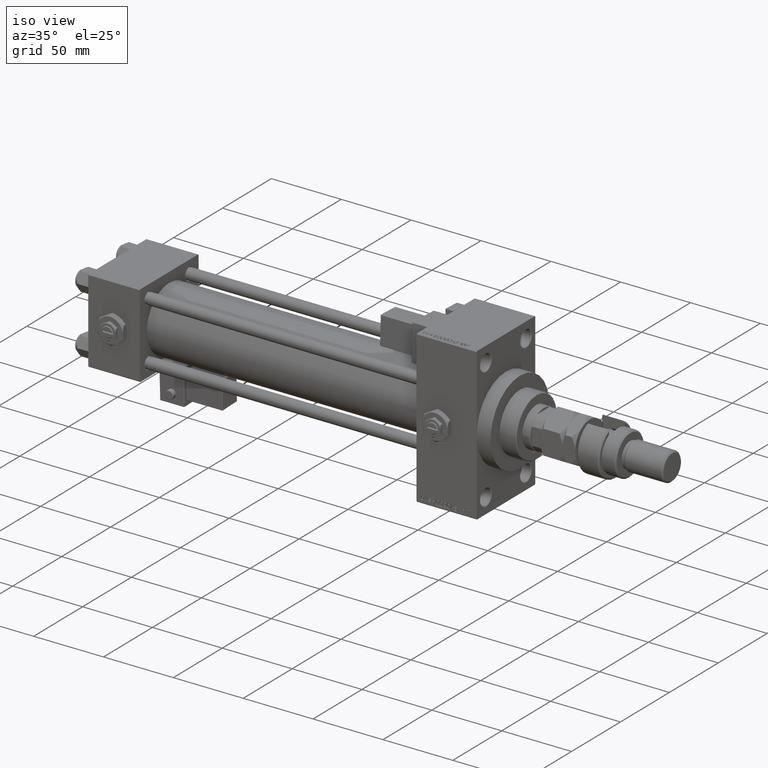
[diagram: clean part render]
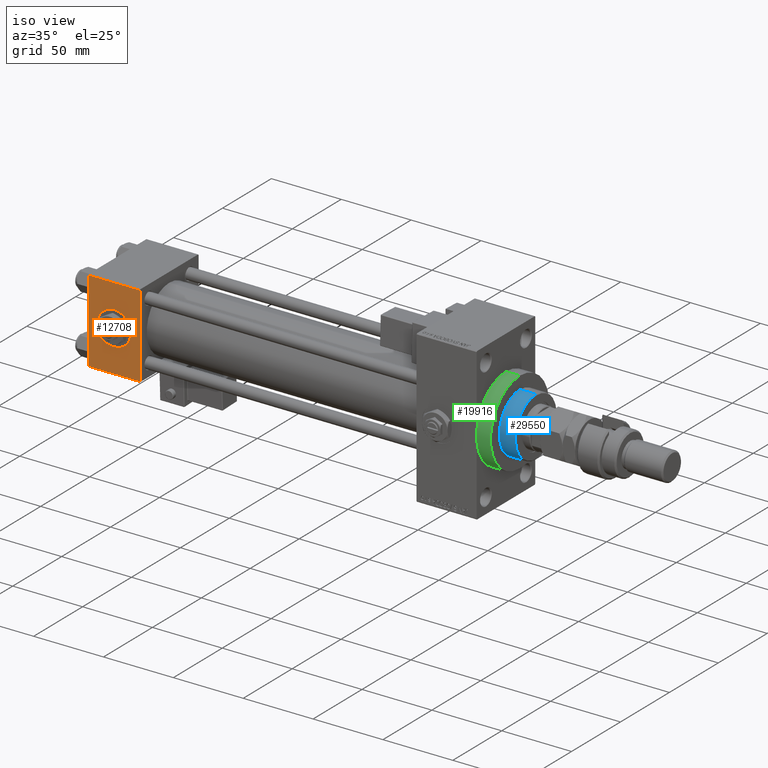
[diagram: same view with three faces highlighted in distinct colors, each labeled with its STEP entity id]
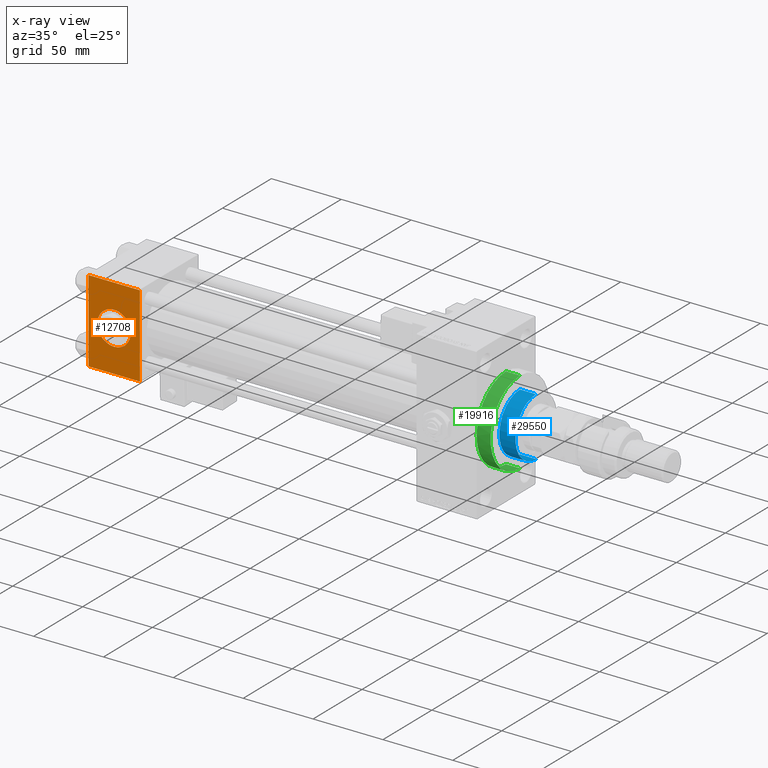
[diagram: x-ray of the same camera — body ghosted, the three highlighted faces saturated]
A machine part, iso view with three faces highlighted in distinct colors.
The next image is the same camera in x-ray (body ghosted, the three faces saturated) — at least one of them is partly hidden behind the body in this view.
Their STEP definitions:

[orange] entity #12708 — the highlighted planar face has unit normal (0, 1, 0).
#1102 = DIRECTION ( 'NONE',  ( 0.000000000000000000, 0.000000000000000000, -1.000000000000000000 ) ) ;
#1226 = DIRECTION ( 'NONE',  ( -1.000000000000000000, 0.000000000000000000, 0.000000000000000000 ) ) ;
#1351 = VERTEX_POINT ( 'NONE', #6314 ) ;
#1535 = EDGE_LOOP ( 'NONE', ( #40857, #37587, #42648, #30805 ) ) ;
#2177 = CIRCLE ( 'NONE', #5689, 12.00000000000000178 ) ;
#3256 = DIRECTION ( 'NONE',  ( 0.000000000000000000, -1.000000000000000000, -8.673617379884036705E-17 ) ) ;
#4600 = CARTESIAN_POINT ( 'NONE',  ( 37.00000000000000000, -30.00000000000000000, -29.50000000000001776 ) ) ;
#5229 = LINE ( 'NONE', #38730, #52235 ) ;
#5255 = CARTESIAN_POINT ( 'NONE',  ( 18.50000000000000000, -30.00000000000000000, 12.00000000000000178 ) ) ;
#5689 = AXIS2_PLACEMENT_3D ( 'NONE', #29051, #3256, #33179 ) ;
#6314 = CARTESIAN_POINT ( 'NONE',  ( 0.000000000000000000, -30.00000000000000000, -29.50000000000001776 ) ) ;
#7433 = FACE_BOUND ( 'NONE', #49913, .T. ) ;
#8308 = EDGE_CURVE ( 'NONE', #43520, #1351, #5229, .T. ) ;
#9732 = LINE ( 'NONE', #4600, #27072 ) ;
#10534 = CARTESIAN_POINT ( 'NONE',  ( 37.00000000000000000, -30.00000000000000000, 29.99999999999999289 ) ) ;
#10738 = DIRECTION ( 'NONE',  ( 0.000000000000000000, -0.000000000000000000, 1.000000000000000000 ) ) ;
#12028 = AXIS2_PLACEMENT_3D ( 'NONE', #24179, #35746, #10738 ) ;
#12708 = ADVANCED_FACE ( 'NONE', ( #7433, #40149 ), #44813, .F. ) ;
#16309 = ORIENTED_EDGE ( 'NONE', *, *, #53830, .F. ) ;
#21264 = CARTESIAN_POINT ( 'NONE',  ( 37.00000000000000000, -30.00000000000000000, 29.49999999999999289 ) ) ;
#21316 = CARTESIAN_POINT ( 'NONE',  ( 18.50000000000000000, -30.00000000000000000, 0.000000000000000000 ) ) ;
#21810 = LINE ( 'NONE', #21264, #37374 ) ;
#21866 = DIRECTION ( 'NONE',  ( 0.000000000000000000, -1.000000000000000000, -8.673617379884036705E-17 ) ) ;
#22291 = VERTEX_POINT ( 'NONE', #5255 ) ;
#23903 = EDGE_CURVE ( 'NONE', #47946, #43520, #21810, .T. ) ;
#24179 = CARTESIAN_POINT ( 'NONE',  ( 37.00000000000000000, -30.00000000000000000, 29.99999999999999289 ) ) ;
#24505 = ORIENTED_EDGE ( 'NONE', *, *, #41927, .F. ) ;
#27072 = VECTOR ( 'NONE', #45819, 1000.000000000000000 ) ;
#27283 = DIRECTION ( 'NONE',  ( 0.000000000000000000, 0.000000000000000000, -1.000000000000000000 ) ) ;
#28243 = VECTOR ( 'NONE', #27283, 1000.000000000000000 ) ;
#28356 = EDGE_CURVE ( 'NONE', #1351, #36880, #9732, .T. ) ;
#29051 = CARTESIAN_POINT ( 'NONE',  ( 18.50000000000000000, -30.00000000000000000, 0.000000000000000000 ) ) ;
#30805 = ORIENTED_EDGE ( 'NONE', *, *, #23903, .T. ) ;
#31910 = AXIS2_PLACEMENT_3D ( 'NONE', #21316, #21866, #38094 ) ;
#33179 = DIRECTION ( 'NONE',  ( 0.000000000000000000, 0.000000000000000000, -1.000000000000000000 ) ) ;
#35746 = DIRECTION ( 'NONE',  ( -0.000000000000000000, 1.000000000000000000, 0.000000000000000000 ) ) ;
#36880 = VERTEX_POINT ( 'NONE', #49303 ) ;
#37374 = VECTOR ( 'NONE', #1226, 1000.000000000000000 ) ;
#37587 = ORIENTED_EDGE ( 'NONE', *, *, #28356, .T. ) ;
#38094 = DIRECTION ( 'NONE',  ( 0.000000000000000000, 0.000000000000000000, -1.000000000000000000 ) ) ;
#38199 = EDGE_CURVE ( 'NONE', #47946, #36880, #43784, .T. ) ;
#38730 = CARTESIAN_POINT ( 'NONE',  ( 0.000000000000000000, -30.00000000000000000, 29.99999999999999289 ) ) ;
#40149 = FACE_OUTER_BOUND ( 'NONE', #1535, .T. ) ;
#40707 = CARTESIAN_POINT ( 'NONE',  ( 18.50000000000000000, -30.00000000000000000, -12.00000000000000178 ) ) ;
#40857 = ORIENTED_EDGE ( 'NONE', *, *, #8308, .T. ) ;
#41927 = EDGE_CURVE ( 'NONE', #48871, #22291, #53000, .T. ) ;
#42104 = CARTESIAN_POINT ( 'NONE',  ( 0.000000000000000000, -30.00000000000000000, 29.49999999999999289 ) ) ;
#42648 = ORIENTED_EDGE ( 'NONE', *, *, #38199, .F. ) ;
#42804 = CARTESIAN_POINT ( 'NONE',  ( 37.00000000000000000, -30.00000000000000000, 29.49999999999999289 ) ) ;
#43520 = VERTEX_POINT ( 'NONE', #42104 ) ;
#43784 = LINE ( 'NONE', #10534, #28243 ) ;
#44813 = PLANE ( 'NONE',  #12028 ) ;
#45819 = DIRECTION ( 'NONE',  ( 1.000000000000000000, 0.000000000000000000, 0.000000000000000000 ) ) ;
#47946 = VERTEX_POINT ( 'NONE', #42804 ) ;
#48871 = VERTEX_POINT ( 'NONE', #40707 ) ;
#49303 = CARTESIAN_POINT ( 'NONE',  ( 37.00000000000000000, -30.00000000000000000, -29.50000000000001776 ) ) ;
#49913 = EDGE_LOOP ( 'NONE', ( #24505, #16309 ) ) ;
#52235 = VECTOR ( 'NONE', #1102, 1000.000000000000000 ) ;
#53000 = CIRCLE ( 'NONE', #31910, 12.00000000000000178 ) ;
#53830 = EDGE_CURVE ( 'NONE', #22291, #48871, #2177, .T. ) ;

[blue] entity #29550 — the highlighted cylindrical surface (edge-blend (fillet) strip) has radius 21 mm, axis along (-1, 0, 0).
#1521 = CARTESIAN_POINT ( 'NONE',  ( -21.00000000000000000, 0.000000000000000000, 55.26000000000000512 ) ) ;
#4468 = CARTESIAN_POINT ( 'NONE',  ( 0.000000000000000000, 0.000000000000000000, 54.75999999999999091 ) ) ;
#5285 = EDGE_CURVE ( 'NONE', #49622, #22089, #47131, .T. ) ;
#5709 = LINE ( 'NONE', #14205, #39839 ) ;
#5962 = EDGE_CURVE ( 'NONE', #24450, #20749, #5709, .T. ) ;
#6450 = CARTESIAN_POINT ( 'NONE',  ( 21.00000000000000000, 2.571758278209441661E-15, 43.25999999999999801 ) ) ;
#7768 = DIRECTION ( 'NONE',  ( 1.000000000000000000, 0.000000000000000000, 0.000000000000000000 ) ) ;
#9355 = AXIS2_PLACEMENT_3D ( 'NONE', #39690, #31452, #36378 ) ;
#9955 = VECTOR ( 'NONE', #47945, 1000.000000000000000 ) ;
#10071 = ORIENTED_EDGE ( 'NONE', *, *, #28584, .T. ) ;
#11150 = CARTESIAN_POINT ( 'NONE',  ( 0.000000000000000000, 0.000000000000000000, 55.26000000000000512 ) ) ;
#12227 = CYLINDRICAL_SURFACE ( 'NONE', #51666, 21.00000000000000000 ) ;
#14205 = CARTESIAN_POINT ( 'NONE',  ( 21.00000000000000000, 2.571758278209441661E-15, 55.26000000000000512 ) ) ;
#14483 = DIRECTION ( 'NONE',  ( -0.000000000000000000, -0.000000000000000000, -1.000000000000000000 ) ) ;
#16345 = FACE_OUTER_BOUND ( 'NONE', #39366, .T. ) ;
#20749 = VERTEX_POINT ( 'NONE', #6450 ) ;
#21453 = ORIENTED_EDGE ( 'NONE', *, *, #5962, .T. ) ;
#22089 = VERTEX_POINT ( 'NONE', #44585 ) ;
#24450 = VERTEX_POINT ( 'NONE', #33959 ) ;
#24791 = EDGE_CURVE ( 'NONE', #20749, #22089, #39196, .T. ) ;
#28584 = EDGE_CURVE ( 'NONE', #49622, #24450, #51635, .T. ) ;
#28986 = DIRECTION ( 'NONE',  ( -1.000000000000000000, 0.000000000000000000, 0.000000000000000000 ) ) ;
#29550 = ADVANCED_FACE ( 'NONE', ( #16345 ), #12227, .T. ) ;
#30620 = ORIENTED_EDGE ( 'NONE', *, *, #5285, .F. ) ;
#31452 = DIRECTION ( 'NONE',  ( 0.000000000000000000, 0.000000000000000000, 1.000000000000000000 ) ) ;
#33302 = DIRECTION ( 'NONE',  ( 0.000000000000000000, 0.000000000000000000, -1.000000000000000000 ) ) ;
#33334 = CARTESIAN_POINT ( 'NONE',  ( -21.00000000000000000, 0.000000000000000000, 54.75999999999999091 ) ) ;
#33464 = ORIENTED_EDGE ( 'NONE', *, *, #24791, .T. ) ;
#33959 = CARTESIAN_POINT ( 'NONE',  ( 21.00000000000000000, 2.571758278209441661E-15, 54.75999999999999091 ) ) ;
#36378 = DIRECTION ( 'NONE',  ( 1.000000000000000000, 0.000000000000000000, 0.000000000000000000 ) ) ;
#39196 = CIRCLE ( 'NONE', #9355, 21.00000000000000000 ) ;
#39366 = EDGE_LOOP ( 'NONE', ( #10071, #21453, #33464, #30620 ) ) ;
#39690 = CARTESIAN_POINT ( 'NONE',  ( 0.000000000000000000, 0.000000000000000000, 43.25999999999999801 ) ) ;
#39839 = VECTOR ( 'NONE', #14483, 1000.000000000000000 ) ;
#43744 = AXIS2_PLACEMENT_3D ( 'NONE', #4468, #33302, #7768 ) ;
#44585 = CARTESIAN_POINT ( 'NONE',  ( -21.00000000000000000, 0.000000000000000000, 43.25999999999999801 ) ) ;
#47131 = LINE ( 'NONE', #1521, #9955 ) ;
#47945 = DIRECTION ( 'NONE',  ( -0.000000000000000000, -0.000000000000000000, -1.000000000000000000 ) ) ;
#49067 = DIRECTION ( 'NONE',  ( -0.000000000000000000, -0.000000000000000000, -1.000000000000000000 ) ) ;
#49622 = VERTEX_POINT ( 'NONE', #33334 ) ;
#51635 = CIRCLE ( 'NONE', #43744, 21.00000000000000000 ) ;
#51666 = AXIS2_PLACEMENT_3D ( 'NONE', #11150, #49067, #28986 ) ;

[green] entity #19916 — the highlighted cylindrical surface (partial cylindrical patch) has radius 30 mm, axis along (-1, -0, -0).
#1891 = EDGE_CURVE ( 'NONE', #37243, #46543, #28387, .T. ) ;
#1913 = FACE_OUTER_BOUND ( 'NONE', #9713, .T. ) ;
#3549 = DIRECTION ( 'NONE',  ( 0.000000000000000000, 0.000000000000000000, -1.000000000000000000 ) ) ;
#3607 = VECTOR ( 'NONE', #48708, 1000.000000000000000 ) ;
#3848 = VECTOR ( 'NONE', #25168, 1000.000000000000000 ) ;
#4711 = AXIS2_PLACEMENT_3D ( 'NONE', #41187, #16995, #3549 ) ;
#5186 = CARTESIAN_POINT ( 'NONE',  ( 278.0000000000000000, 0.000000000000000000, 30.00000000000000000 ) ) ;
#5405 = DIRECTION ( 'NONE',  ( 1.000000000000000000, 0.000000000000000000, 0.000000000000000000 ) ) ;
#6070 = AXIS2_PLACEMENT_3D ( 'NONE', #6584, #48073, #9622 ) ;
#6584 = CARTESIAN_POINT ( 'NONE',  ( 288.0000000000000568, 0.000000000000000000, 0.000000000000000000 ) ) ;
#8719 = CARTESIAN_POINT ( 'NONE',  ( 278.0000000000000000, 0.000000000000000000, 0.000000000000000000 ) ) ;
#9622 = DIRECTION ( 'NONE',  ( 0.000000000000000000, 0.000000000000000000, 1.000000000000000000 ) ) ;
#9713 = EDGE_LOOP ( 'NONE', ( #45522, #18973, #40949, #41944, #53577 ) ) ;
#9942 = AXIS2_PLACEMENT_3D ( 'NONE', #8719, #5405, #50757 ) ;
#10263 = DIRECTION ( 'NONE',  ( 1.000000000000000000, 0.000000000000000000, 0.000000000000000000 ) ) ;
#13142 = CIRCLE ( 'NONE', #43869, 30.00000000000000000 ) ;
#13376 = CIRCLE ( 'NONE', #9942, 30.00000000000000000 ) ;
#14903 = CARTESIAN_POINT ( 'NONE',  ( 288.0000000000000568, 3.673940397442059178E-15, -30.00000000000000000 ) ) ;
#16664 = VERTEX_POINT ( 'NONE', #5186 ) ;
#16995 = DIRECTION ( 'NONE',  ( 1.000000000000000000, 0.000000000000000000, 0.000000000000000000 ) ) ;
#18973 = ORIENTED_EDGE ( 'NONE', *, *, #1891, .F. ) ;
#19916 = ADVANCED_FACE ( 'NONE', ( #1913 ), #52187, .T. ) ;
#20149 = CARTESIAN_POINT ( 'NONE',  ( 278.0000000000000000, -30.00000000000000000, 0.000000000000000000 ) ) ;
#21277 = VERTEX_POINT ( 'NONE', #45511 ) ;
#24219 = LINE ( 'NONE', #14903, #3607 ) ;
#24898 = CARTESIAN_POINT ( 'NONE',  ( 288.0000000000000568, 0.000000000000000000, 30.00000000000000000 ) ) ;
#25168 = DIRECTION ( 'NONE',  ( -1.000000000000000000, -0.000000000000000000, -0.000000000000000000 ) ) ;
#28387 = CIRCLE ( 'NONE', #4711, 30.00000000000000000 ) ;
#31636 = EDGE_CURVE ( 'NONE', #16664, #51248, #13142, .T. ) ;
#34109 = CARTESIAN_POINT ( 'NONE',  ( 288.0000000000000568, 3.673940397442059178E-15, -30.00000000000000000 ) ) ;
#37243 = VERTEX_POINT ( 'NONE', #44589 ) ;
#37263 = EDGE_CURVE ( 'NONE', #46543, #21277, #24219, .T. ) ;
#38568 = CARTESIAN_POINT ( 'NONE',  ( 278.0000000000000000, 0.000000000000000000, 0.000000000000000000 ) ) ;
#40949 = ORIENTED_EDGE ( 'NONE', *, *, #45032, .T. ) ;
#41187 = CARTESIAN_POINT ( 'NONE',  ( 288.0000000000000568, 0.000000000000000000, 0.000000000000000000 ) ) ;
#41944 = ORIENTED_EDGE ( 'NONE', *, *, #31636, .T. ) ;
#43869 = AXIS2_PLACEMENT_3D ( 'NONE', #38568, #10263, #47365 ) ;
#44589 = CARTESIAN_POINT ( 'NONE',  ( 288.0000000000000568, 0.000000000000000000, 30.00000000000000000 ) ) ;
#45032 = EDGE_CURVE ( 'NONE', #37243, #16664, #49906, .T. ) ;
#45511 = CARTESIAN_POINT ( 'NONE',  ( 278.0000000000000000, 3.673940397442059178E-15, -30.00000000000000000 ) ) ;
#45522 = ORIENTED_EDGE ( 'NONE', *, *, #37263, .F. ) ;
#46543 = VERTEX_POINT ( 'NONE', #34109 ) ;
#47175 = EDGE_CURVE ( 'NONE', #51248, #21277, #13376, .T. ) ;
#47365 = DIRECTION ( 'NONE',  ( 0.000000000000000000, 0.000000000000000000, -1.000000000000000000 ) ) ;
#48073 = DIRECTION ( 'NONE',  ( -1.000000000000000000, -0.000000000000000000, -0.000000000000000000 ) ) ;
#48708 = DIRECTION ( 'NONE',  ( -1.000000000000000000, -0.000000000000000000, -0.000000000000000000 ) ) ;
#49906 = LINE ( 'NONE', #24898, #3848 ) ;
#50757 = DIRECTION ( 'NONE',  ( 0.000000000000000000, 0.000000000000000000, -1.000000000000000000 ) ) ;
#51248 = VERTEX_POINT ( 'NONE', #20149 ) ;
#52187 = CYLINDRICAL_SURFACE ( 'NONE', #6070, 30.00000000000000000 ) ;
#53577 = ORIENTED_EDGE ( 'NONE', *, *, #47175, .T. ) ;